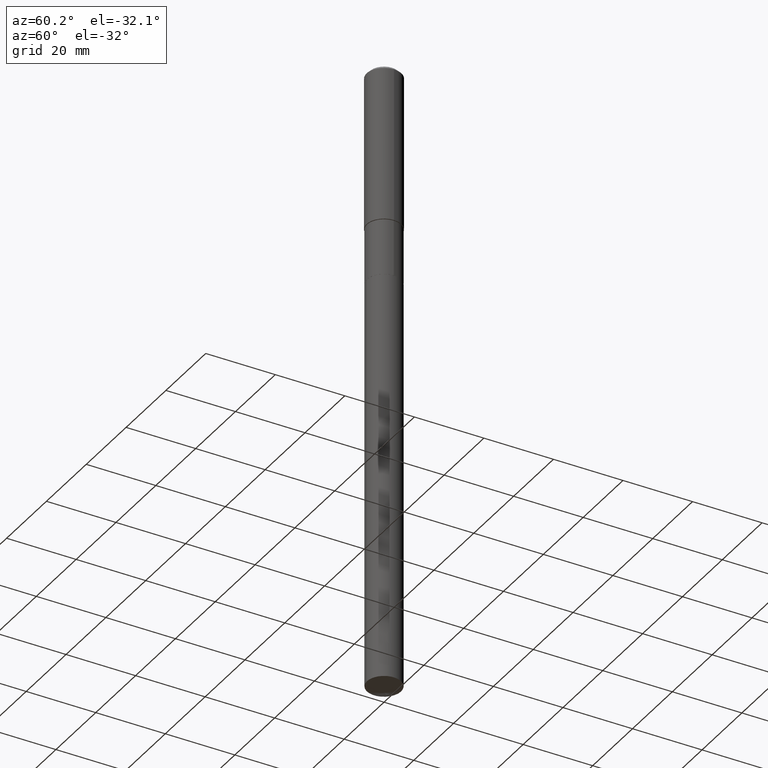
[diagram: clean part render]
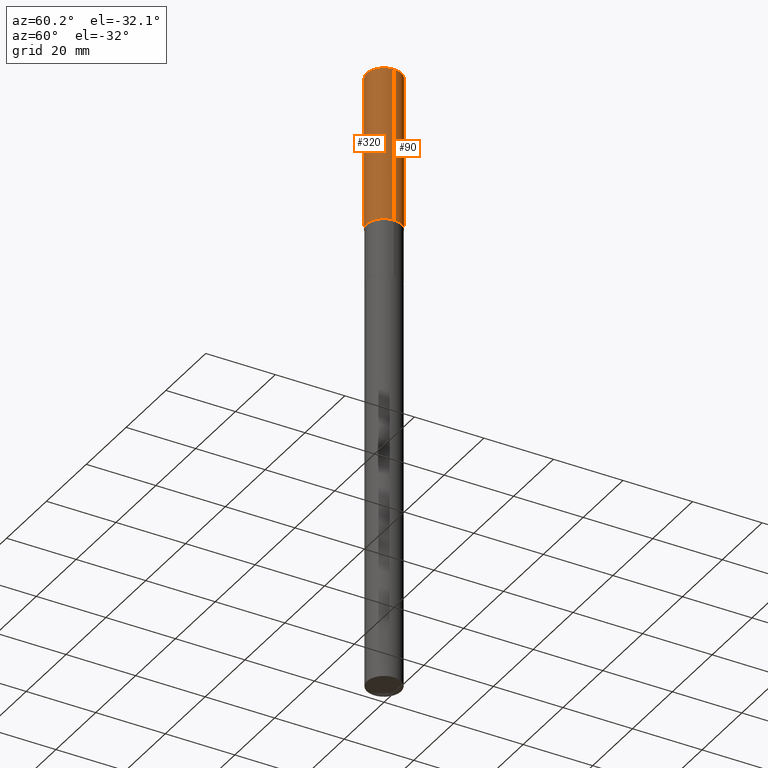
[diagram: same view with one multi-face feature highlighted, each face labeled with its STEP entity id]
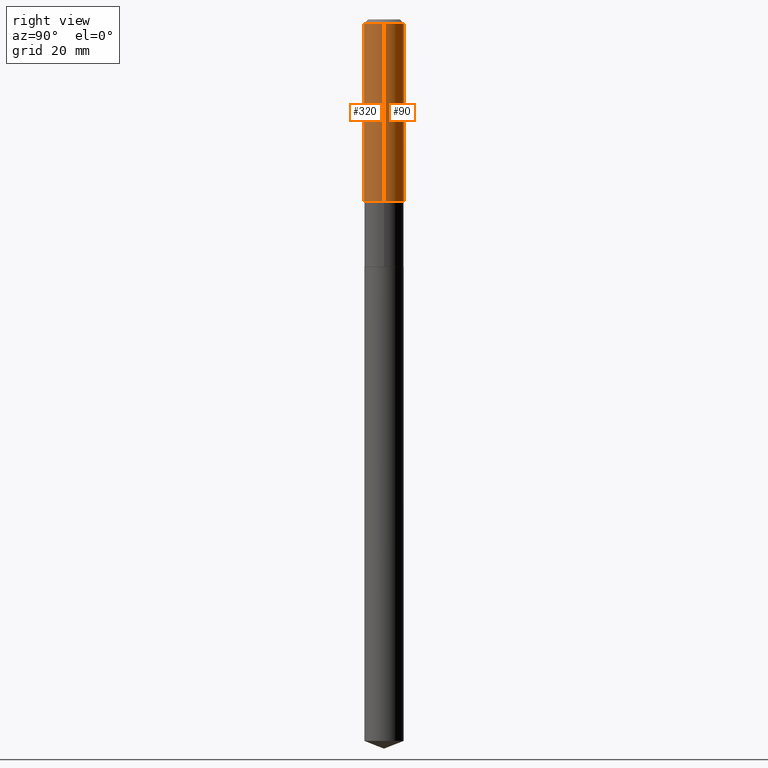
[diagram: same view with one multi-face feature highlighted, each face labeled with its STEP entity id]
A machine part, auxiliary view. The highlighted faces form ONE feature: a constant-radius fillet chain: 2 tangent blend faces with common blend radius 5 mm. The faces share edges in the B-rep.
A second angle (right view) of the same feature is appended — it is thin or edge-on in the first view.
Their STEP definitions:
[1] entity #90 (Cylinder):
#15 = EDGE_CURVE ( 'NONE', #71, #362, #364, .T. ) ;
#55 = CARTESIAN_POINT ( 'NONE',  ( 4.372865045779949954E-29, -6.243292356052368154E-15, -1.788149999999999240 ) ) ;
#71 = VERTEX_POINT ( 'NONE', #191 ) ;
#78 = CYLINDRICAL_SURFACE ( 'NONE', #311, 0.1968500000000001082 ) ;
#87 = ORIENTED_EDGE ( 'NONE', *, *, #160, .T. ) ;
#90 = ADVANCED_FACE ( 'NONE', ( #186 ), #78, .T. ) ;
#96 = DIRECTION ( 'NONE',  ( 1.000000000000000000, -6.982962677686265922E-15, 0.000000000000000000 ) ) ;
#115 = LINE ( 'NONE', #151, #394 ) ;
#124 = CARTESIAN_POINT ( 'NONE',  ( 0.1968500000000000250, -1.512055823412797189E-15, -0.03937000000000026589 ) ) ;
#144 = DIRECTION ( 'NONE',  ( -2.445468806185136877E-29, 3.491481338843145188E-15, 1.000000000000000000 ) ) ;
#147 = CARTESIAN_POINT ( 'NONE',  ( 0.1968500000000001082, -1.374596203102542397E-15, 9.598753983154305062E-30 ) ) ;
#151 = CARTESIAN_POINT ( 'NONE',  ( -0.1968500000000001082, 1.398703375343757985E-15, -9.682923725166787881E-30 ) ) ;
#157 = CARTESIAN_POINT ( 'NONE',  ( 9.627810689950948900E-31, -1.374596203102555561E-16, -0.03937000000000026589 ) ) ;
#160 = EDGE_CURVE ( 'NONE', #71, #224, #435, .T. ) ;
#182 = AXIS2_PLACEMENT_3D ( 'NONE', #157, #308, #342 ) ;
#186 = FACE_OUTER_BOUND ( 'NONE', #338, .T. ) ;
#191 = CARTESIAN_POINT ( 'NONE',  ( 0.1968500000000002192, -7.617888559154910551E-15, -1.788149999999999240 ) ) ;
#224 = VERTEX_POINT ( 'NONE', #341 ) ;
#226 = CARTESIAN_POINT ( 'NONE',  ( 0.000000000000000000, 0.000000000000000000, 0.000000000000000000 ) ) ;
#293 = VERTEX_POINT ( 'NONE', #314 ) ;
#308 = DIRECTION ( 'NONE',  ( -2.445468806185136597E-29, 3.491481338843145583E-15, 1.000000000000000000 ) ) ;
#311 = AXIS2_PLACEMENT_3D ( 'NONE', #226, #340, #396 ) ;
#314 = CARTESIAN_POINT ( 'NONE',  ( -0.1968500000000000250, -1.791672612837553291E-15, -0.03937000000000026589 ) ) ;
#322 = CIRCLE ( 'NONE', #182, 0.1968500000000000250 ) ;
#329 = ORIENTED_EDGE ( 'NONE', *, *, #423, .T. ) ;
#338 = EDGE_LOOP ( 'NONE', ( #87, #329, #346, #487 ) ) ;
#340 = DIRECTION ( 'NONE',  ( -2.445468806185136597E-29, 3.491481338843145583E-15, 1.000000000000000000 ) ) ;
#341 = CARTESIAN_POINT ( 'NONE',  ( -0.1968500000000002192, -4.844588980708610367E-15, -1.788149999999999240 ) ) ;
#342 = DIRECTION ( 'NONE',  ( 1.000000000000000000, -6.982962677686265922E-15, 0.000000000000000000 ) ) ;
#346 = ORIENTED_EDGE ( 'NONE', *, *, #358, .F. ) ;
#358 = EDGE_CURVE ( 'NONE', #362, #293, #322, .T. ) ;
#362 = VERTEX_POINT ( 'NONE', #124 ) ;
#364 = LINE ( 'NONE', #147, #415 ) ;
#394 = VECTOR ( 'NONE', #144, 39.37007874015748143 ) ;
#396 = DIRECTION ( 'NONE',  ( 1.000000000000000000, -6.982962677686266711E-15, 4.876176775795935793E-29 ) ) ;
#415 = VECTOR ( 'NONE', #451, 39.37007874015748143 ) ;
#421 = AXIS2_PLACEMENT_3D ( 'NONE', #55, #467, #96 ) ;
#423 = EDGE_CURVE ( 'NONE', #224, #293, #115, .T. ) ;
#435 = CIRCLE ( 'NONE', #421, 0.1968500000000002192 ) ;
#451 = DIRECTION ( 'NONE',  ( -2.445468806185136877E-29, 3.491481338843145188E-15, 1.000000000000000000 ) ) ;
#467 = DIRECTION ( 'NONE',  ( -2.445468806185136597E-29, 3.491481338843145583E-15, 1.000000000000000000 ) ) ;
#487 = ORIENTED_EDGE ( 'NONE', *, *, #15, .F. ) ;
[2] entity #320 (Cylinder):
#6 = CYLINDRICAL_SURFACE ( 'NONE', #9, 0.1968500000000001082 ) ;
#9 = AXIS2_PLACEMENT_3D ( 'NONE', #18, #489, #70 ) ;
#15 = EDGE_CURVE ( 'NONE', #71, #362, #364, .T. ) ;
#18 = CARTESIAN_POINT ( 'NONE',  ( 0.000000000000000000, 0.000000000000000000, 0.000000000000000000 ) ) ;
#20 = AXIS2_PLACEMENT_3D ( 'NONE', #457, #387, #392 ) ;
#70 = DIRECTION ( 'NONE',  ( 1.000000000000000000, -6.982962677686266711E-15, 4.876176775795935793E-29 ) ) ;
#71 = VERTEX_POINT ( 'NONE', #191 ) ;
#115 = LINE ( 'NONE', #151, #394 ) ;
#124 = CARTESIAN_POINT ( 'NONE',  ( 0.1968500000000000250, -1.512055823412797189E-15, -0.03937000000000026589 ) ) ;
#131 = EDGE_CURVE ( 'NONE', #224, #71, #145, .T. ) ;
#137 = ORIENTED_EDGE ( 'NONE', *, *, #283, .F. ) ;
#144 = DIRECTION ( 'NONE',  ( -2.445468806185136877E-29, 3.491481338843145188E-15, 1.000000000000000000 ) ) ;
#145 = CIRCLE ( 'NONE', #20, 0.1968500000000002192 ) ;
#147 = CARTESIAN_POINT ( 'NONE',  ( 0.1968500000000001082, -1.374596203102542397E-15, 9.598753983154305062E-30 ) ) ;
#151 = CARTESIAN_POINT ( 'NONE',  ( -0.1968500000000001082, 1.398703375343757985E-15, -9.682923725166787881E-30 ) ) ;
#164 = DIRECTION ( 'NONE',  ( 1.000000000000000000, -6.982962677686265922E-15, 0.000000000000000000 ) ) ;
#191 = CARTESIAN_POINT ( 'NONE',  ( 0.1968500000000002192, -7.617888559154910551E-15, -1.788149999999999240 ) ) ;
#200 = CIRCLE ( 'NONE', #279, 0.1968500000000000250 ) ;
#218 = ORIENTED_EDGE ( 'NONE', *, *, #423, .F. ) ;
#224 = VERTEX_POINT ( 'NONE', #341 ) ;
#236 = FACE_OUTER_BOUND ( 'NONE', #485, .T. ) ;
#243 = DIRECTION ( 'NONE',  ( -2.445468806185136597E-29, 3.491481338843145583E-15, 1.000000000000000000 ) ) ;
#249 = ORIENTED_EDGE ( 'NONE', *, *, #131, .T. ) ;
#276 = ORIENTED_EDGE ( 'NONE', *, *, #15, .T. ) ;
#279 = AXIS2_PLACEMENT_3D ( 'NONE', #409, #243, #164 ) ;
#283 = EDGE_CURVE ( 'NONE', #293, #362, #200, .T. ) ;
#293 = VERTEX_POINT ( 'NONE', #314 ) ;
#314 = CARTESIAN_POINT ( 'NONE',  ( -0.1968500000000000250, -1.791672612837553291E-15, -0.03937000000000026589 ) ) ;
#320 = ADVANCED_FACE ( 'NONE', ( #236 ), #6, .T. ) ;
#341 = CARTESIAN_POINT ( 'NONE',  ( -0.1968500000000002192, -4.844588980708610367E-15, -1.788149999999999240 ) ) ;
#362 = VERTEX_POINT ( 'NONE', #124 ) ;
#364 = LINE ( 'NONE', #147, #415 ) ;
#387 = DIRECTION ( 'NONE',  ( -2.445468806185136597E-29, 3.491481338843145583E-15, 1.000000000000000000 ) ) ;
#392 = DIRECTION ( 'NONE',  ( 1.000000000000000000, -6.982962677686265922E-15, 0.000000000000000000 ) ) ;
#394 = VECTOR ( 'NONE', #144, 39.37007874015748143 ) ;
#409 = CARTESIAN_POINT ( 'NONE',  ( 9.627810689950948900E-31, -1.374596203102555561E-16, -0.03937000000000026589 ) ) ;
#415 = VECTOR ( 'NONE', #451, 39.37007874015748143 ) ;
#423 = EDGE_CURVE ( 'NONE', #224, #293, #115, .T. ) ;
#451 = DIRECTION ( 'NONE',  ( -2.445468806185136877E-29, 3.491481338843145188E-15, 1.000000000000000000 ) ) ;
#457 = CARTESIAN_POINT ( 'NONE',  ( 4.372865045779949954E-29, -6.243292356052368154E-15, -1.788149999999999240 ) ) ;
#485 = EDGE_LOOP ( 'NONE', ( #218, #249, #276, #137 ) ) ;
#489 = DIRECTION ( 'NONE',  ( -2.445468806185136597E-29, 3.491481338843145583E-15, 1.000000000000000000 ) ) ;